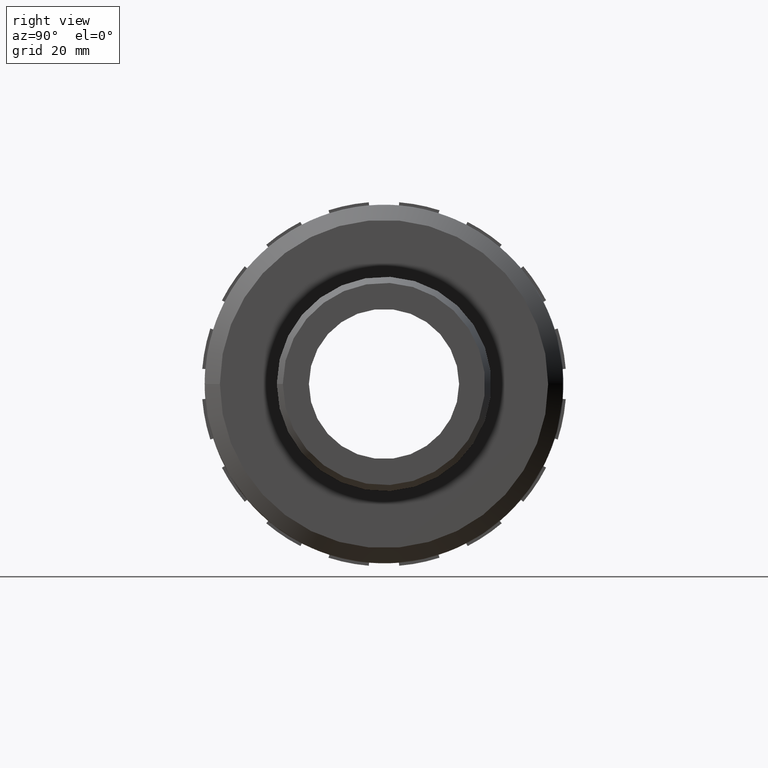
[diagram: clean part render]
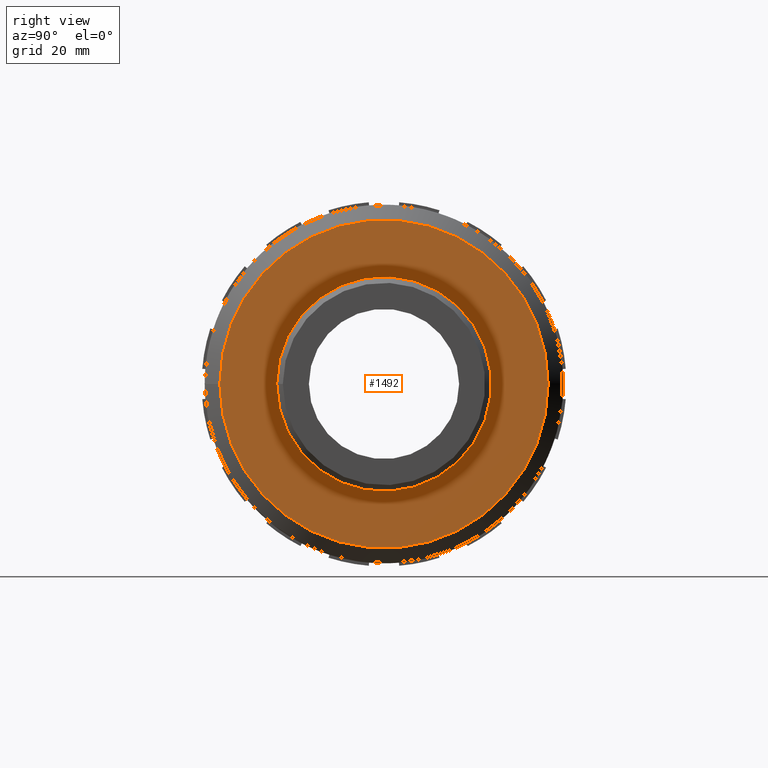
[diagram: same view with one face highlighted and labeled with its STEP entity id]
A machine part, right view. The second image highlights one B-rep face of the part: STEP entity #1492.
In plain terms, the highlighted planar face has unit normal (1, 0, 0).
Its self-contained STEP definition (entity closure, byte-faithful):
#44=FACE_BOUND('',#298,.T.);
#127=CIRCLE('',#1643,30.59424);
#129=CIRCLE('',#1646,20.);
#211=FACE_OUTER_BOUND('',#297,.T.);
#297=EDGE_LOOP('',(#1270));
#298=EDGE_LOOP('',(#1271));
#718=VERTEX_POINT('',#2532);
#720=VERTEX_POINT('',#2537);
#929=EDGE_CURVE('',#718,#718,#127,.T.);
#931=EDGE_CURVE('',#720,#720,#129,.T.);
#1270=ORIENTED_EDGE('',*,*,#929,.F.);
#1271=ORIENTED_EDGE('',*,*,#931,.T.);
#1418=PLANE('',#1645);
#1492=ADVANCED_FACE('',(#211,#44),#1418,.T.);
#1643=AXIS2_PLACEMENT_3D('',#2533,#2071,#2072);
#1645=AXIS2_PLACEMENT_3D('',#2536,#2075,#2076);
#1646=AXIS2_PLACEMENT_3D('',#2538,#2077,#2078);
#2071=DIRECTION('center_axis',(-1.,0.,0.));
#2072=DIRECTION('ref_axis',(0.,1.,0.));
#2075=DIRECTION('center_axis',(1.,0.,0.));
#2076=DIRECTION('ref_axis',(0.,0.,-1.));
#2077=DIRECTION('center_axis',(-1.,0.,0.));
#2078=DIRECTION('ref_axis',(0.,0.,1.));
#2532=CARTESIAN_POINT('',(29.1,-30.59424,3.74671380883459E-15));
#2533=CARTESIAN_POINT('Origin',(29.1,0.,0.));
#2536=CARTESIAN_POINT('Origin',(29.1,-33.42704,0.));
#2537=CARTESIAN_POINT('',(29.1,-20.,0.));
#2538=CARTESIAN_POINT('Origin',(29.1,0.,0.));